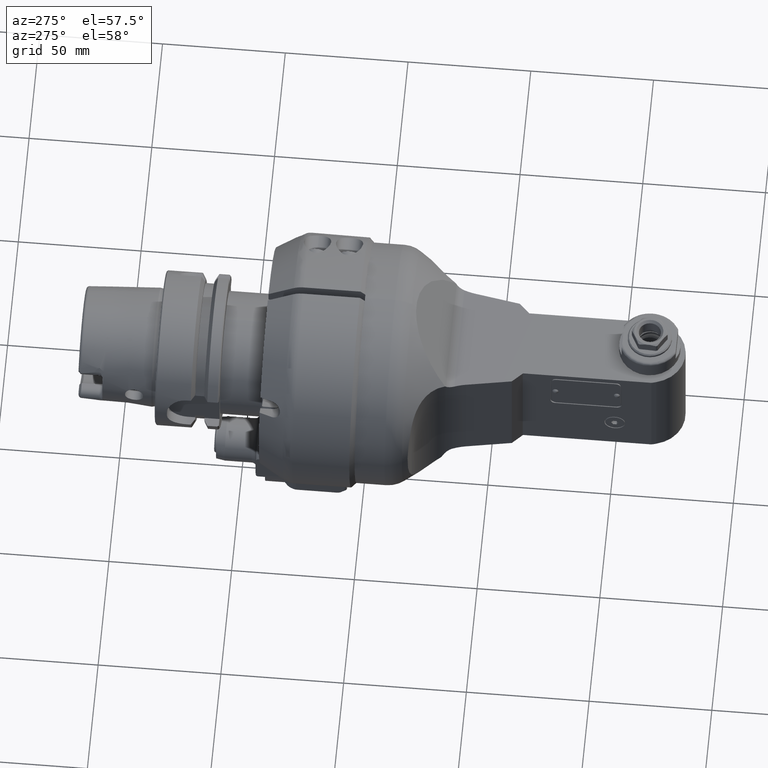
[diagram: clean part render]
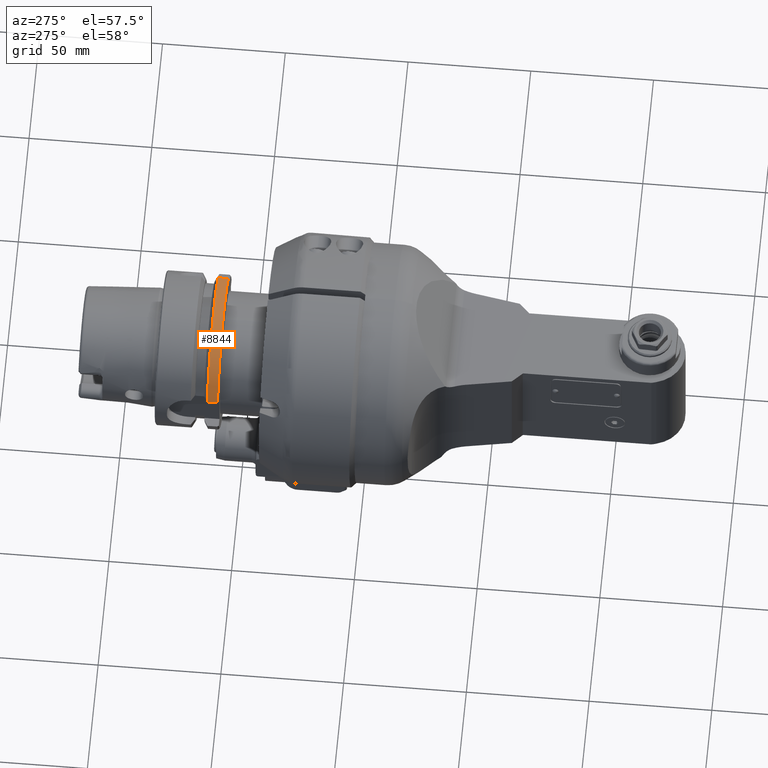
[diagram: same view with one face highlighted and labeled with its STEP entity id]
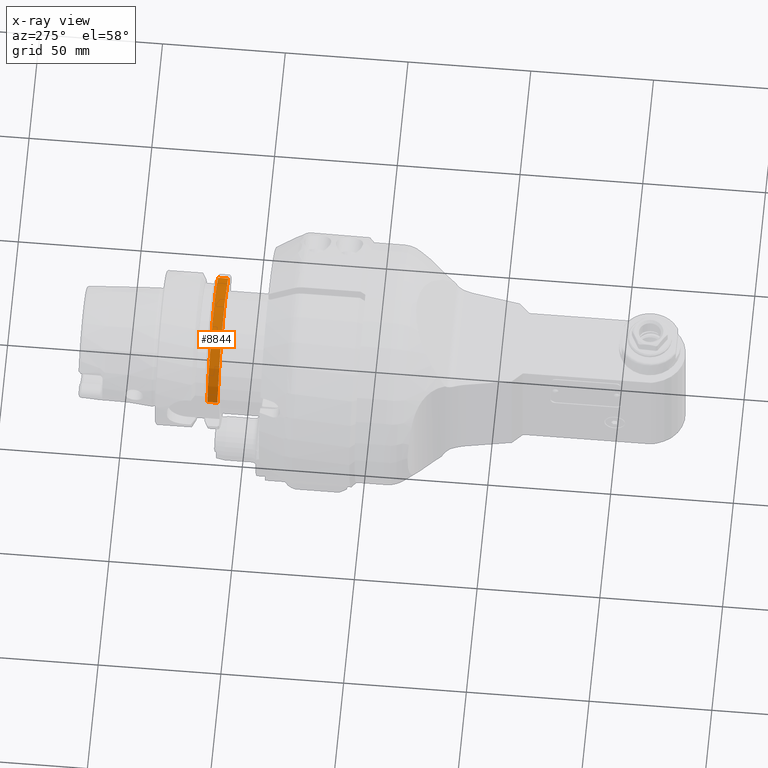
[diagram: x-ray of the same camera — body ghosted, the highlighted face saturated]
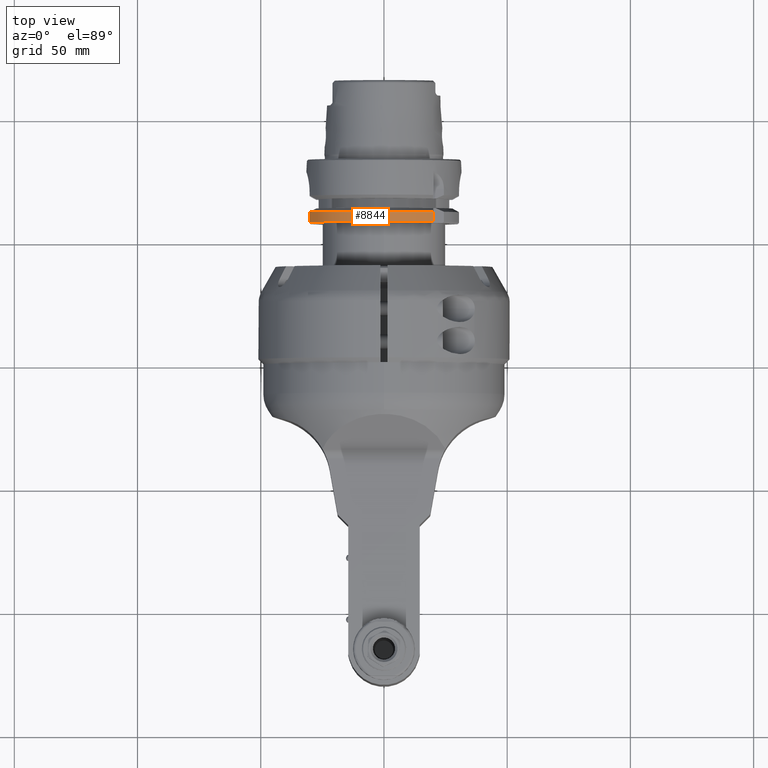
[diagram: same view with one face highlighted and labeled with its STEP entity id]
A machine part, auxiliary view. The second image highlights one B-rep face of the part: STEP entity #8844.
The next image is the same camera in x-ray: the body ghosted, the highlighted face saturated — about 0% of this face is hidden behind the body in this view.
A second angle (top view) of the same face is appended — the face is thin or edge-on in the first view.
In plain terms, the highlighted cylindrical surface (partial cylindrical patch) has radius 31.5 mm, axis along (0, 1, 0).
Its self-contained STEP definition (entity closure, byte-faithful):
#763=FACE_OUTER_BOUND('',#1316,.T.);
#1316=EDGE_LOOP('',(#6547,#6548,#6549,#6550));
#1888=CIRCLE('',#9526,31.5);
#1890=CIRCLE('',#9530,31.5);
#2525=LINE('',#14028,#3164);
#2528=LINE('',#14059,#3167);
#3164=VECTOR('',#10885,10.);
#3167=VECTOR('',#10896,4.12249751389202);
#3874=VERTEX_POINT('',#14023);
#3875=VERTEX_POINT('',#14027);
#3876=VERTEX_POINT('',#14031);
#3877=VERTEX_POINT('',#14044);
#4871=EDGE_CURVE('',#3875,#3874,#2525,.T.);
#4873=EDGE_CURVE('',#3875,#3876,#1888,.T.);
#4878=EDGE_CURVE('',#3877,#3876,#2528,.T.);
#4880=EDGE_CURVE('',#3877,#3874,#1890,.T.);
#6547=ORIENTED_EDGE('',*,*,#4871,.T.);
#6548=ORIENTED_EDGE('',*,*,#4880,.F.);
#6549=ORIENTED_EDGE('',*,*,#4878,.T.);
#6550=ORIENTED_EDGE('',*,*,#4873,.F.);
#8597=CYLINDRICAL_SURFACE('',#9531,31.5);
#8844=ADVANCED_FACE('',(#763),#8597,.T.);
#9526=AXIS2_PLACEMENT_3D('',#14032,#10890,#10891);
#9530=AXIS2_PLACEMENT_3D('',#14062,#10901,#10902);
#9531=AXIS2_PLACEMENT_3D('',#14063,#10903,#10904);
#10885=DIRECTION('',(0.,1.,0.));
#10890=DIRECTION('center_axis',(0.,-1.,0.));
#10891=DIRECTION('ref_axis',(0.,0.,1.));
#10896=DIRECTION('',(-3.05878025407898E-8,-0.999999999999994,-1.02594597984899E-7));
#10901=DIRECTION('center_axis',(0.,1.,0.));
#10902=DIRECTION('ref_axis',(0.,0.,1.));
#10903=DIRECTION('center_axis',(0.,1.,0.));
#10904=DIRECTION('ref_axis',(0.,0.,1.));
#14023=CARTESIAN_POINT('',(19.9999999996526,61.6225009247006,24.3361870480639));
#14027=CARTESIAN_POINT('',(20.0000001014629,57.5000000410875,24.3361869988175));
#14028=CARTESIAN_POINT('',(20.,54.9,24.3361870472759));
#14031=CARTESIAN_POINT('',(-30.18691769625,57.5,9.));
#14032=CARTESIAN_POINT('Origin',(1.347113091385E-14,57.5,0.));
#14044=CARTESIAN_POINT('',(-30.1869175352254,61.6225009024752,9.00000062994275));
#14059=CARTESIAN_POINT('',(-30.18691757015,61.62249751389,9.000000422946));
#14062=CARTESIAN_POINT('Origin',(1.347113091385E-14,61.62250092524,0.));
#14063=CARTESIAN_POINT('Origin',(1.347113091385E-14,54.9,0.));